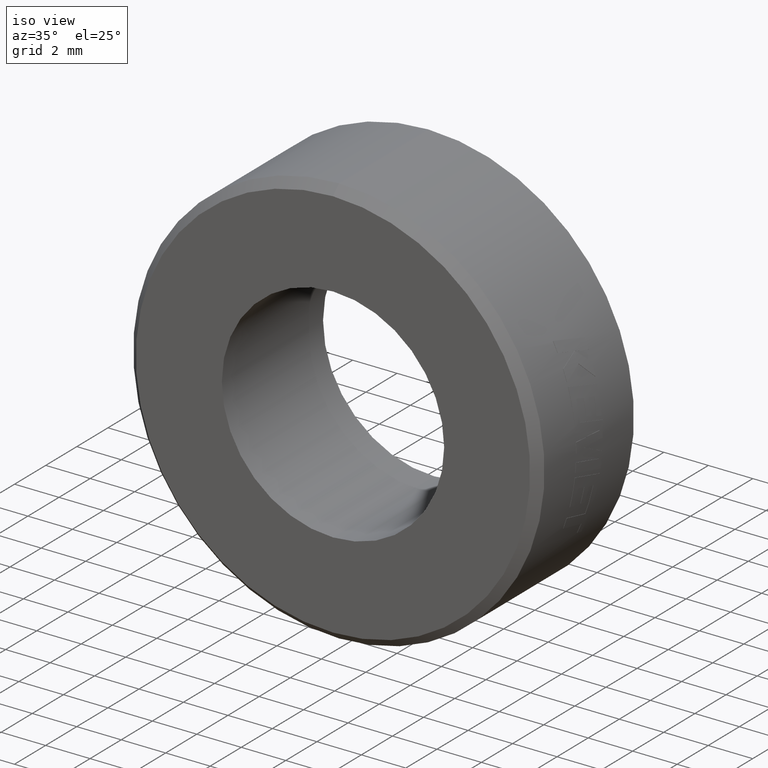
[diagram: clean part render]
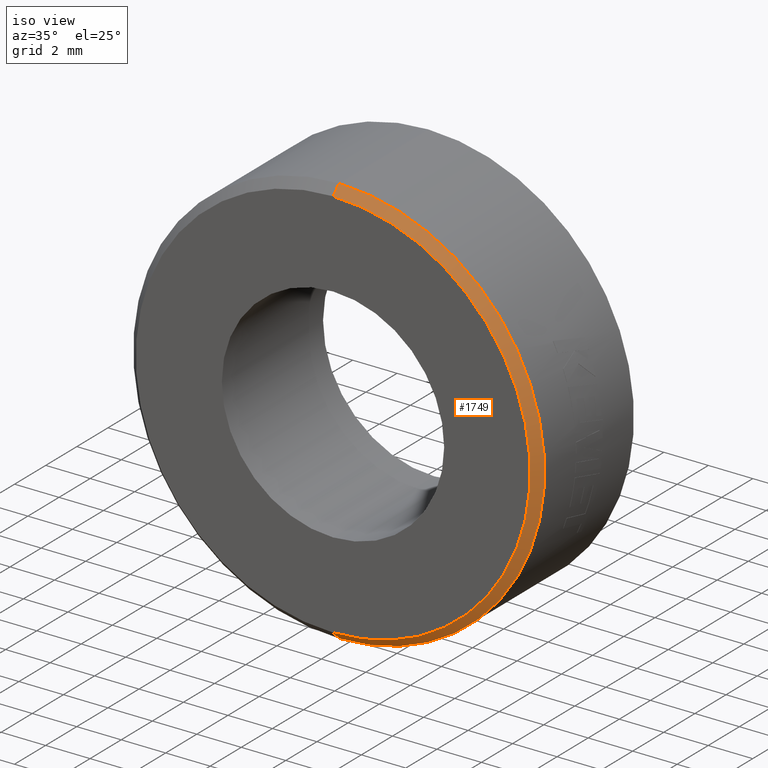
[diagram: same view with one face highlighted and labeled with its STEP entity id]
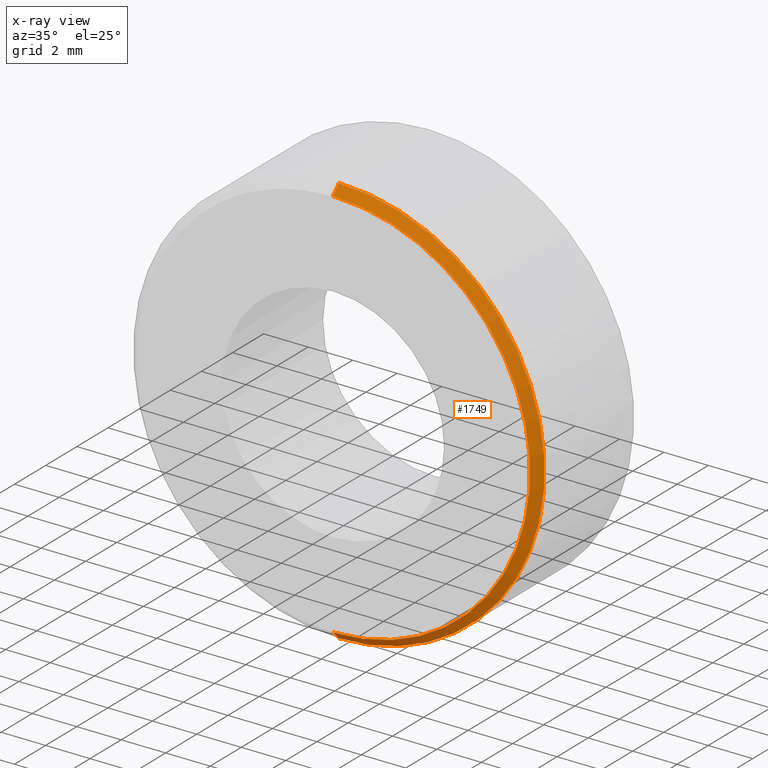
[diagram: x-ray of the same camera — body ghosted, the highlighted face saturated]
A machine part, iso view. The second image highlights one B-rep face of the part: STEP entity #1749.
The next image is the same camera in x-ray: the body ghosted, the highlighted face saturated — about 0% of this face is hidden behind the body in this view.
In plain terms, the highlighted conical surface has half-angle 45 deg.
Its self-contained STEP definition (entity closure, byte-faithful):
#138 = LINE ( 'NONE', #849, #1644 ) ;
#162 = DIRECTION ( 'NONE',  ( -0.000000000000000000, 1.000000000000000000, -0.000000000000000000 ) ) ;
#211 = DIRECTION ( 'NONE',  ( -0.000000000000000000, -1.000000000000000000, -0.000000000000000000 ) ) ;
#358 = EDGE_CURVE ( 'NONE', #1474, #2081, #1748, .T. ) ;
#374 = ORIENTED_EDGE ( 'NONE', *, *, #2154, .T. ) ;
#481 = AXIS2_PLACEMENT_3D ( 'NONE', #694, #2444, #912 ) ;
#694 = CARTESIAN_POINT ( 'NONE',  ( 0.000000000000000000, -2.868899999999990680, 0.000000000000000000 ) ) ;
#706 = EDGE_LOOP ( 'NONE', ( #1816, #374, #1727, #963 ) ) ;
#731 = CARTESIAN_POINT ( 'NONE',  ( 0.000000000000000000, -2.868899999999990680, 0.000000000000000000 ) ) ;
#849 = CARTESIAN_POINT ( 'NONE',  ( 0.000000000000000000, -2.868899999999990680, 9.250000000000000000 ) ) ;
#912 = DIRECTION ( 'NONE',  ( 0.000000000000000000, 0.000000000000000000, 1.000000000000000000 ) ) ;
#963 = ORIENTED_EDGE ( 'NONE', *, *, #1198, .F. ) ;
#998 = CONICAL_SURFACE ( 'NONE', #481, 9.250000000000000000, 0.7853981633974506105 ) ;
#1006 = CIRCLE ( 'NONE', #1091, 8.868899999999989348 ) ;
#1075 = VERTEX_POINT ( 'NONE', #1737 ) ;
#1088 = CARTESIAN_POINT ( 'NONE',  ( 1.132798289211301698E-15, -2.868899999999990680, -9.250000000000000000 ) ) ;
#1091 = AXIS2_PLACEMENT_3D ( 'NONE', #2290, #211, #2261 ) ;
#1113 = AXIS2_PLACEMENT_3D ( 'NONE', #731, #162, #1300 ) ;
#1198 = EDGE_CURVE ( 'NONE', #2027, #1474, #138, .T. ) ;
#1238 = DIRECTION ( 'NONE',  ( 0.000000000000000000, 0.7071067811865459074, 0.7071067811865491270 ) ) ;
#1270 = FACE_OUTER_BOUND ( 'NONE', #706, .T. ) ;
#1300 = DIRECTION ( 'NONE',  ( 0.000000000000000000, 0.000000000000000000, 1.000000000000000000 ) ) ;
#1405 = CARTESIAN_POINT ( 'NONE',  ( 1.132798289211301501E-15, -2.868899999999990680, -9.250000000000000000 ) ) ;
#1474 = VERTEX_POINT ( 'NONE', #2114 ) ;
#1626 = EDGE_CURVE ( 'NONE', #1075, #2027, #1006, .T. ) ;
#1644 = VECTOR ( 'NONE', #1238, 1000.000000000000000 ) ;
#1693 = LINE ( 'NONE', #1088, #1911 ) ;
#1727 = ORIENTED_EDGE ( 'NONE', *, *, #358, .F. ) ;
#1737 = CARTESIAN_POINT ( 'NONE',  ( 1.109462644453547969E-15, -3.250000000000000000, -8.868899999999989348 ) ) ;
#1748 = CIRCLE ( 'NONE', #1113, 9.250000000000000000 ) ;
#1749 = ADVANCED_FACE ( 'NONE', ( #1270 ), #998, .T. ) ;
#1816 = ORIENTED_EDGE ( 'NONE', *, *, #1626, .F. ) ;
#1911 = VECTOR ( 'NONE', #2247, 1000.000000000000000 ) ;
#2027 = VERTEX_POINT ( 'NONE', #2163 ) ;
#2081 = VERTEX_POINT ( 'NONE', #1405 ) ;
#2114 = CARTESIAN_POINT ( 'NONE',  ( 0.000000000000000000, -2.868899999999990680, 9.250000000000000000 ) ) ;
#2154 = EDGE_CURVE ( 'NONE', #1075, #2081, #1693, .T. ) ;
#2163 = CARTESIAN_POINT ( 'NONE',  ( 0.000000000000000000, -3.250000000000000000, 8.868899999999989348 ) ) ;
#2247 = DIRECTION ( 'NONE',  ( 8.659560562354952580E-17, 0.7071067811865459074, -0.7071067811865491270 ) ) ;
#2261 = DIRECTION ( 'NONE',  ( 0.000000000000000000, 0.000000000000000000, 1.000000000000000000 ) ) ;
#2290 = CARTESIAN_POINT ( 'NONE',  ( 0.000000000000000000, -3.250000000000000000, 0.000000000000000000 ) ) ;
#2444 = DIRECTION ( 'NONE',  ( -0.000000000000000000, 1.000000000000000000, -0.000000000000000000 ) ) ;